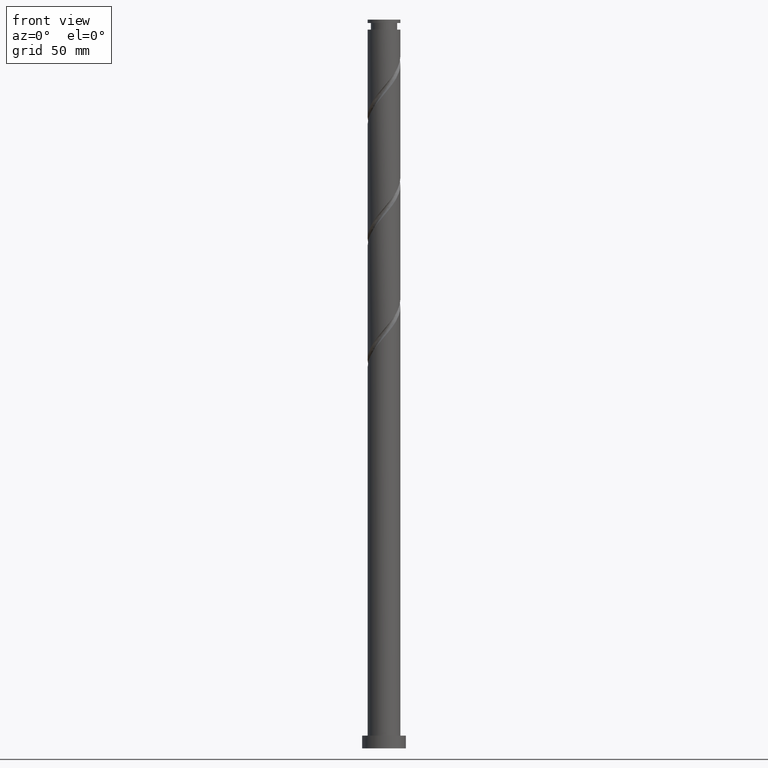
[diagram: clean part render]
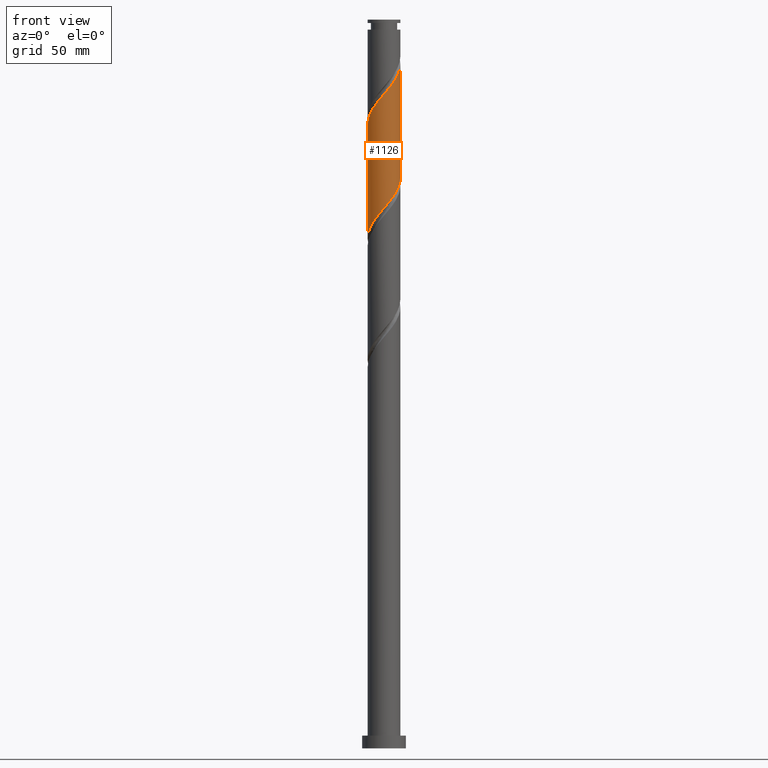
[diagram: same view with one face highlighted and labeled with its STEP entity id]
A machine part, front view. The second image highlights one B-rep face of the part: STEP entity #1126.
In plain terms, the highlighted cylindrical surface (edge-blend (fillet) strip) has radius 9 mm, axis along (-0, -0, -1).
Its self-contained STEP definition (entity closure, byte-faithful):
#9 = CARTESIAN_POINT ( 'NONE',  ( -2.717996741835189134, -8.631760691383114192, 293.3895788067387116 ) ) ;
#21 = CARTESIAN_POINT ( 'NONE',  ( 8.584475003159690587, -2.703107271294727720, 310.0562454734053972 ) ) ;
#25 = DIRECTION ( 'NONE',  ( -0.000000000000000000, -0.000000000000000000, -1.000000000000000000 ) ) ;
#28 = CARTESIAN_POINT ( 'NONE',  ( 9.000000000000017764, -3.019579914974393641E-15, 375.7085800076617375 ) ) ;
#42 = CARTESIAN_POINT ( 'NONE',  ( 8.958891231136643540, -0.8592251792533189825, 312.2784676956277394 ) ) ;
#87 = VERTEX_POINT ( 'NONE', #1881 ) ;
#142 = CARTESIAN_POINT ( 'NONE',  ( -8.584475003159710127, -2.703107271294723279, 345.6118010289609401 ) ) ;
#160 = CARTESIAN_POINT ( 'NONE',  ( 7.369385068757456025, -5.252329257606383806, 306.7229121400720828 ) ) ;
#168 = CARTESIAN_POINT ( 'NONE',  ( -1.027839790055897096, -8.991014641736025936, 357.8340232511831687 ) ) ;
#172 = CARTESIAN_POINT ( 'NONE',  ( 3.735334782763712447, -8.188239985532636211, 301.1673565845164831 ) ) ;
#179 = CARTESIAN_POINT ( 'NONE',  ( 2.717996741835187358, -8.631760691383135509, 362.2784676956277963 ) ) ;
#190 = CARTESIAN_POINT ( 'NONE',  ( 8.533832754774719476, -2.858968085434738349, 372.2784676956276826 ) ) ;
#194 = CARTESIAN_POINT ( 'NONE',  ( -8.941760922783187127, -1.022209176141313014, 281.1673565845164831 ) ) ;
#205 = CARTESIAN_POINT ( 'NONE',  ( -8.233343100506116841, -3.755910051010503015, 284.5006899178497974 ) ) ;
#322 = CARTESIAN_POINT ( 'NONE',  ( -0.08194087915362405217, -8.999626975176459709, 358.9451343622941977 ) ) ;
#346 = CARTESIAN_POINT ( 'NONE',  ( 8.300366980569171105, -3.605371951659140706, 308.9451343622941408 ) ) ;
#352 = CARTESIAN_POINT ( 'NONE',  ( -1.951277935484189374, -8.785927066536167729, 356.7229121400720260 ) ) ;
#355 = CARTESIAN_POINT ( 'NONE',  ( -1.790977386791921644, -8.819999999999996732, 294.5006899178498543 ) ) ;
#372 = EDGE_CURVE ( 'NONE', #1418, #87, #584, .T. ) ;
#414 = CARTESIAN_POINT ( 'NONE',  ( -6.116325667208126760, -6.669734571524174704, 351.1673565845164831 ) ) ;
#431 = CARTESIAN_POINT ( 'NONE',  ( -9.000000000000000000, 0.000000000000000000, 400.0000000000000000 ) ) ;
#476 = VERTEX_POINT ( 'NONE', #1181 ) ;
#477 = CARTESIAN_POINT ( 'NONE',  ( 9.000000000000000000, 1.102182119232617714E-15, 400.0000000000000000 ) ) ;
#489 = CARTESIAN_POINT ( 'NONE',  ( 0.8639580317486520444, -9.008239308616900587, 360.0562454734054540 ) ) ;
#493 = CARTESIAN_POINT ( 'NONE',  ( -0.8639580317486584837, -9.008239308616882823, 295.6118010289609401 ) ) ;
#504 = CARTESIAN_POINT ( 'NONE',  ( 6.742855367982783399, -5.961031914565274370, 305.6118010289609401 ) ) ;
#519 = CARTESIAN_POINT ( 'NONE',  ( 6.633197067675519421, -6.082819795241444005, 367.8340232511831118 ) ) ;
#552 = VECTOR ( 'NONE', #1426, 1000.000000000000000 ) ;
#571 = CARTESIAN_POINT ( 'NONE',  ( -8.300366980569190645, -3.605371951659140262, 346.7229121400720828 ) ) ;
#584 = LINE ( 'NONE', #431, #1063 ) ;
#592 = CARTESIAN_POINT ( 'NONE',  ( -9.000000000000015987, -5.979366168266126546E-17, 342.3752466743283662 ) ) ;
#614 = CARTESIAN_POINT ( 'NONE',  ( -7.834876024663330440, -4.428850604632764032, 347.8340232511831687 ) ) ;
#647 = CARTESIAN_POINT ( 'NONE',  ( -8.834322409043297242, -1.962026119858949036, 282.2784676956276826 ) ) ;
#654 = VERTEX_POINT ( 'NONE', #1577 ) ;
#655 = CARTESIAN_POINT ( 'NONE',  ( 3.585621346871657789, -8.254896701767901135, 363.3895788067387684 ) ) ;
#670 = CARTESIAN_POINT ( 'NONE',  ( 9.000000000000003553, -0.4305959935807315841, 312.7842513024741038 ) ) ;
#713 = EDGE_CURVE ( 'NONE', #1418, #476, #925, .T. ) ;
#723 = EDGE_CURVE ( 'NONE', #476, #654, #1557, .T. ) ;
#730 = ORIENTED_EDGE ( 'NONE', *, *, #723, .F. ) ;
#794 = CARTESIAN_POINT ( 'NONE',  ( 8.868583025750210069, -1.800842590930308296, 311.1673565845164831 ) ) ;
#801 = CARTESIAN_POINT ( 'NONE',  ( 8.233343100506131051, -3.755910051010514561, 371.1673565845164831 ) ) ;
#812 = CARTESIAN_POINT ( 'NONE',  ( -4.595953484614968332, -7.795640479728990435, 353.3895788067387116 ) ) ;
#815 = CARTESIAN_POINT ( 'NONE',  ( -7.272527190513280004, -5.385642690076868355, 286.7229121400721397 ) ) ;
#829 = CARTESIAN_POINT ( 'NONE',  ( -5.356139575911547546, -7.232687525626579017, 352.2784676956275121 ) ) ;
#851 =( BOUNDED_CURVE ( )  B_SPLINE_CURVE ( 2, ( #1904, #670, #42, #794, #21, #346, #1276, #160, #504, #941, #1890, #1391, #172, #1586, #1563, #1120, #1750, #493, #355, #9, #928, #1922, #1245, #1130, #966, #815, #1403, #205, #1109, #647, #194, #975, #1877 ),
 .UNSPECIFIED., .F., .T. ) 
 B_SPLINE_CURVE_WITH_KNOTS ( ( 3, 2, 2, 2, 2, 2, 2, 2, 2, 2, 2, 2, 2, 2, 2, 2, 3 ),
 ( 0.5545286012773112949, 0.5583333333333333481, 0.5666666666666666519, 0.5749999999999999556, 0.5833333333333333703, 0.5916666666666666741, 0.5999999999999999778, 0.6083333333333332815, 0.6166666666666666963, 0.6250000000000000000, 0.6333333333333333037, 0.6416666666666667185, 0.6500000000000000222, 0.6583333333333333259, 0.6666666666666666297, 0.6750000000000000444, 0.6795286012773116280 ),
 .UNSPECIFIED. ) 
 CURVE ( )  GEOMETRIC_REPRESENTATION_ITEM ( )  RATIONAL_B_SPLINE_CURVE ( ( 0.9066196499552123811, 0.9068171577856249943, 0.9090909090909240486, 0.9041108139711723224, 0.9090909090909240486, 0.9041108139711723224, 0.9090909090909240486, 0.9041108139711723224, 0.9090909090909240486, 0.9041108139711723224, 0.9090909090909240486, 0.9041108139711723224, 0.9090909090909240486, 0.9041108139711723224, 0.9090909090909240486, 0.9041108139711723224, 0.9090909090909240486, 0.9041108139711723224, 0.9090909090909240486, 0.9041108139711723224, 0.9090909090909240486, 0.9041108139711723224, 0.9090909090909240486, 0.9041108139711723224, 0.9090909090909240486, 0.9041108139711723224, 0.9090909090909240486, 0.9041108139711723224, 0.9090909090909240486, 0.9041108139711723224, 0.9090909090909240486, 0.9063845652764711547, 0.9066196499552123811 ) ) 
 REPRESENTATION_ITEM ( '' )  );
#920 = CARTESIAN_POINT ( 'NONE',  ( -9.000000000000014211, -0.4305959935807734396, 342.8837951998924609 ) ) ;
#925 =( BOUNDED_CURVE ( )  B_SPLINE_CURVE ( 2, ( #592, #920, #1042, #1668, #142, #571, #614, #1182, #1813, #414, #829, #812, #1252, #1911, #352, #168, #322, #489, #950, #179, #655, #1735, #1115, #1437, #519, #1747, #1242, #801, #190, #973, #937, #1411, #28 ),
 .UNSPECIFIED., .F., .T. ) 
 B_SPLINE_CURVE_WITH_KNOTS ( ( 3, 2, 2, 2, 2, 2, 2, 2, 2, 2, 2, 2, 2, 2, 2, 2, 3 ),
 ( 0.5545286012773117390, 0.5583333333333333481, 0.5666666666666666519, 0.5749999999999999556, 0.5833333333333332593, 0.5916666666666666741, 0.5999999999999999778, 0.6083333333333333925, 0.6166666666666666963, 0.6250000000000000000, 0.6333333333333333037, 0.6416666666666666075, 0.6500000000000000222, 0.6583333333333333259, 0.6666666666666667407, 0.6750000000000000444, 0.6795286012773114059 ),
 .UNSPECIFIED. ) 
 CURVE ( )  GEOMETRIC_REPRESENTATION_ITEM ( )  RATIONAL_B_SPLINE_CURVE ( ( 0.9066196499552202637, 0.9068171577856330989, 0.9090909090909319312, 0.9041108139711800940, 0.9090909090909319312, 0.9041108139711800940, 0.9090909090909319312, 0.9041108139711800940, 0.9090909090909319312, 0.9041108139711800940, 0.9090909090909319312, 0.9041108139711800940, 0.9090909090909319312, 0.9041108139711800940, 0.9090909090909319312, 0.9041108139711800940, 0.9090909090909319312, 0.9041108139711800940, 0.9090909090909319312, 0.9041108139711800940, 0.9090909090909319312, 0.9041108139711800940, 0.9090909090909319312, 0.9041108139711800940, 0.9090909090909319312, 0.9041108139711800940, 0.9090909090909319312, 0.9041108139711800940, 0.9090909090909319312, 0.9041108139711800940, 0.9090909090909319312, 0.9063845652764790373, 0.9066196499552201526 ) ) 
 REPRESENTATION_ITEM ( '' )  );
#928 = CARTESIAN_POINT ( 'NONE',  ( -3.585621346871658233, -8.254896701767883371, 292.2784676956275689 ) ) ;
#937 = CARTESIAN_POINT ( 'NONE',  ( 8.941760922783203114, -1.022209176141318565, 374.5006899178498543 ) ) ;
#941 = CARTESIAN_POINT ( 'NONE',  ( 6.116325667208112549, -6.669734571524164934, 304.5006899178500817 ) ) ;
#950 = CARTESIAN_POINT ( 'NONE',  ( 1.790977386791920756, -8.820000000000012719, 361.1673565845164831 ) ) ;
#959 = ORIENTED_EDGE ( 'NONE', *, *, #372, .T. ) ;
#966 = CARTESIAN_POINT ( 'NONE',  ( -6.633197067675508762, -6.082819795241429794, 287.8340232511830550 ) ) ;
#973 = CARTESIAN_POINT ( 'NONE',  ( 8.834322409043315005, -1.962026119858962803, 373.3895788067387116 ) ) ;
#975 = CARTESIAN_POINT ( 'NONE',  ( -9.000000000000001776, -0.5127636370178746406, 280.5650578040892356 ) ) ;
#1042 = CARTESIAN_POINT ( 'NONE',  ( -8.958891231136661304, -0.8592251792533123211, 343.3895788067387116 ) ) ;
#1063 = VECTOR ( 'NONE', #1198, 1000.000000000000000 ) ;
#1071 = ORIENTED_EDGE ( 'NONE', *, *, #713, .F. ) ;
#1109 = CARTESIAN_POINT ( 'NONE',  ( -8.533832754774707041, -2.858968085434725470, 283.3895788067387116 ) ) ;
#1115 = CARTESIAN_POINT ( 'NONE',  ( 5.223556448372935535, -7.329014806279339211, 365.6118010289608833 ) ) ;
#1120 = CARTESIAN_POINT ( 'NONE',  ( 1.027839790055891100, -8.991014641736004620, 297.8340232511832255 ) ) ;
#1126 = ADVANCED_FACE ( 'NONE', ( #1555 ), #1409, .T. ) ;
#1130 = CARTESIAN_POINT ( 'NONE',  ( -5.993866944837742849, -6.779996900405991234, 288.9451343622942545 ) ) ;
#1181 = CARTESIAN_POINT ( 'NONE',  ( 9.000000000000015987, -3.019579914974393641E-15, 375.7085800076617375 ) ) ;
#1182 = CARTESIAN_POINT ( 'NONE',  ( -7.369385068757478230, -5.252329257606385582, 348.9451343622943114 ) ) ;
#1198 = DIRECTION ( 'NONE',  ( -0.000000000000000000, -0.000000000000000000, -1.000000000000000000 ) ) ;
#1242 = CARTESIAN_POINT ( 'NONE',  ( 7.752935145509708192, -4.570776370543699230, 370.0562454734053972 ) ) ;
#1245 = CARTESIAN_POINT ( 'NONE',  ( -5.223556448372932870, -7.329014806279322336, 290.0562454734053404 ) ) ;
#1252 = CARTESIAN_POINT ( 'NONE',  ( -3.735334782763724437, -8.188239985532652199, 354.5006899178497406 ) ) ;
#1262 = DIRECTION ( 'NONE',  ( -1.000000000000000000, 0.000000000000000000, 0.000000000000000000 ) ) ;
#1276 = CARTESIAN_POINT ( 'NONE',  ( 7.834876024663315341, -4.428850604632758703, 307.8340232511831687 ) ) ;
#1315 = ORIENTED_EDGE ( 'NONE', *, *, #1485, .F. ) ;
#1391 = CARTESIAN_POINT ( 'NONE',  ( 4.595953484614951456, -7.795640479728977112, 302.2784676956277394 ) ) ;
#1403 = CARTESIAN_POINT ( 'NONE',  ( -7.752935145509697534, -4.570776370543681466, 285.6118010289609401 ) ) ;
#1409 = CYLINDRICAL_SURFACE ( 'NONE', #1559, 9.000000000000000000 ) ;
#1411 = CARTESIAN_POINT ( 'NONE',  ( 9.000000000000015987, -0.5127636370179066150, 375.1029886982771586 ) ) ;
#1418 = VERTEX_POINT ( 'NONE', #1673 ) ;
#1426 = DIRECTION ( 'NONE',  ( -0.000000000000000000, -0.000000000000000000, -1.000000000000000000 ) ) ;
#1437 = CARTESIAN_POINT ( 'NONE',  ( 5.993866944837748179, -6.779996900406008997, 366.7229121400720260 ) ) ;
#1485 = EDGE_CURVE ( 'NONE', #654, #87, #851, .T. ) ;
#1555 = FACE_OUTER_BOUND ( 'NONE', #1764, .T. ) ;
#1557 = LINE ( 'NONE', #477, #552 ) ;
#1559 = AXIS2_PLACEMENT_3D ( 'NONE', #1570, #25, #1262 ) ;
#1563 = CARTESIAN_POINT ( 'NONE',  ( 1.951277935484178272, -8.785927066536149965, 298.9451343622941977 ) ) ;
#1570 = CARTESIAN_POINT ( 'NONE',  ( 0.000000000000000000, 0.000000000000000000, 400.0000000000000000 ) ) ;
#1577 = CARTESIAN_POINT ( 'NONE',  ( 9.000000000000000000, 1.019481931689383533E-14, 313.2927998280379711 ) ) ;
#1586 = CARTESIAN_POINT ( 'NONE',  ( 2.874716080912471217, -8.580839491336300640, 300.0562454734053972 ) ) ;
#1668 = CARTESIAN_POINT ( 'NONE',  ( -8.868583025750229609, -1.800842590930307630, 344.5006899178497974 ) ) ;
#1673 = CARTESIAN_POINT ( 'NONE',  ( -9.000000000000015987, -5.979366168266126546E-17, 342.3752466743283662 ) ) ;
#1735 = CARTESIAN_POINT ( 'NONE',  ( 4.453245951908129108, -7.878032712152670314, 364.5006899178497406 ) ) ;
#1747 = CARTESIAN_POINT ( 'NONE',  ( 7.272527190513288886, -5.385642690076883454, 368.9451343622941977 ) ) ;
#1750 = CARTESIAN_POINT ( 'NONE',  ( 0.08194087915361626673, -8.999626975176445498, 296.7229121400720260 ) ) ;
#1764 = EDGE_LOOP ( 'NONE', ( #730, #1071, #959, #1315 ) ) ;
#1813 = CARTESIAN_POINT ( 'NONE',  ( -6.742855367982801162, -5.961031914565277923, 350.0562454734053404 ) ) ;
#1877 = CARTESIAN_POINT ( 'NONE',  ( -9.000000000000000000, 1.133089888886440769E-14, 279.9594664947046567 ) ) ;
#1881 = CARTESIAN_POINT ( 'NONE',  ( -9.000000000000000000, 1.133089888886440769E-14, 279.9594664947046567 ) ) ;
#1890 = CARTESIAN_POINT ( 'NONE',  ( 5.356139575911532447, -7.232687525626571023, 303.3895788067386547 ) ) ;
#1904 = CARTESIAN_POINT ( 'NONE',  ( 9.000000000000000000, 1.019481931689383533E-14, 313.2927998280379711 ) ) ;
#1911 = CARTESIAN_POINT ( 'NONE',  ( -2.874716080912483207, -8.580839491336313074, 355.6118010289610538 ) ) ;
#1922 = CARTESIAN_POINT ( 'NONE',  ( -4.453245951908125555, -7.878032712152652550, 291.1673565845165399 ) ) ;